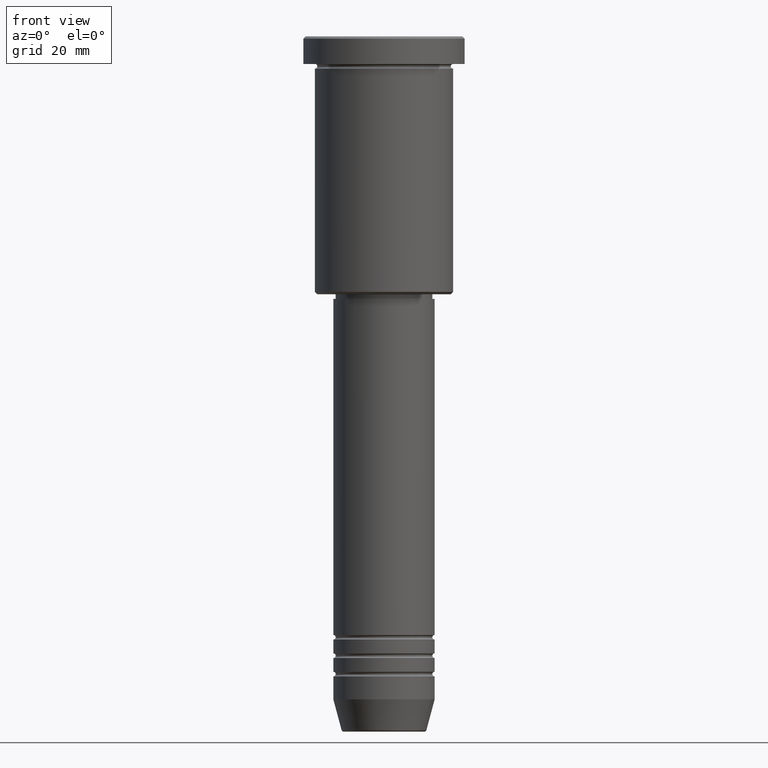
[diagram: clean part render]
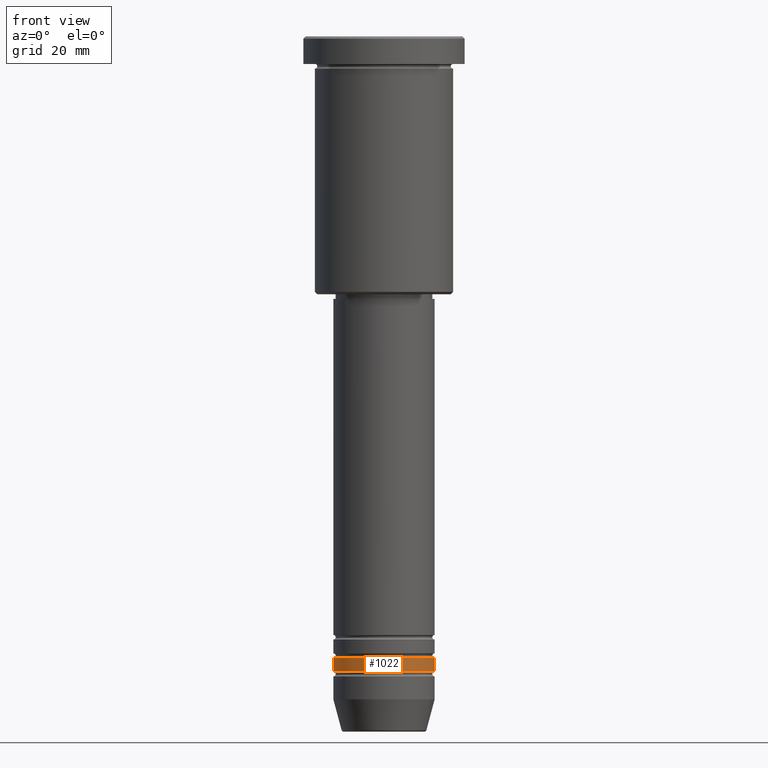
[diagram: same view with one face highlighted and labeled with its STEP entity id]
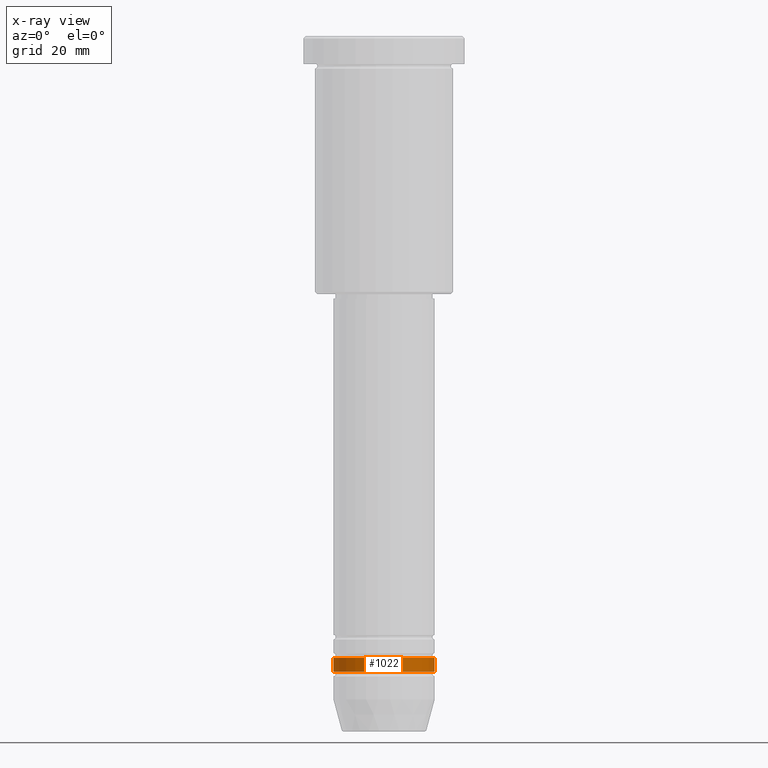
[diagram: x-ray of the same camera — body ghosted, the highlighted face saturated]
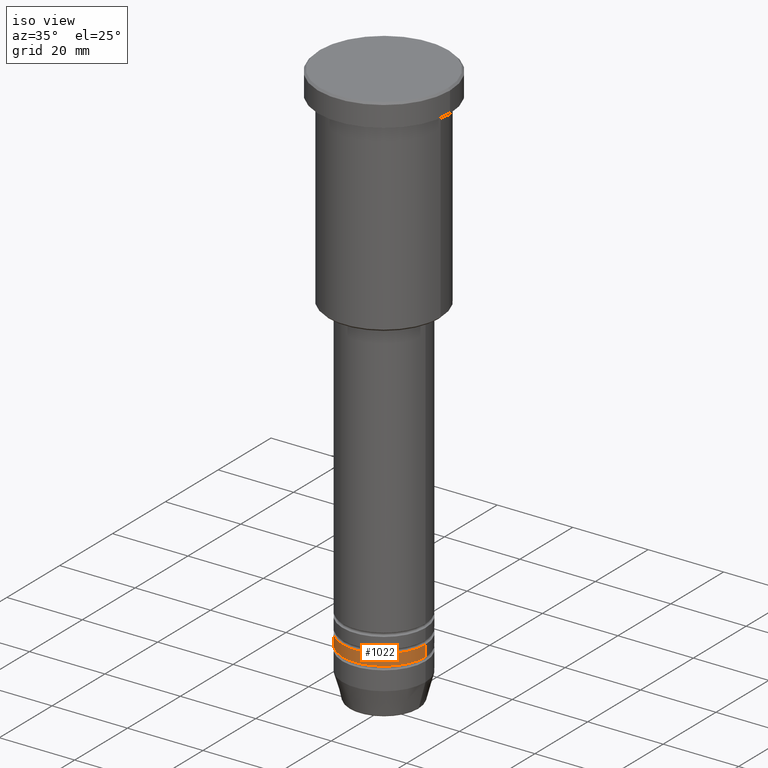
[diagram: same view with one face highlighted and labeled with its STEP entity id]
A machine part, front view. The second image highlights one B-rep face of the part: STEP entity #1022.
The next image is the same camera in x-ray: the body ghosted, the highlighted face saturated — about 0% of this face is hidden behind the body in this view.
A second angle (iso view) of the same face is appended — the face is thin or edge-on in the first view.
In plain terms, the highlighted cylindrical surface (partial cylindrical patch) has radius 11 mm, axis along (-0, -0, 1).
Its self-contained STEP definition (entity closure, byte-faithful):
#13 = CARTESIAN_POINT ( 'NONE',  ( -11.00000000000000000, 1.347111479062088405E-15, -134.9999999999998863 ) ) ;
#43 = DIRECTION ( 'NONE',  ( -0.000000000000000000, -0.000000000000000000, 1.000000000000000000 ) ) ;
#45 = CYLINDRICAL_SURFACE ( 'NONE', #84, 11.00000000000000000 ) ;
#84 = AXIS2_PLACEMENT_3D ( 'NONE', #600, #124, #955 ) ;
#124 = DIRECTION ( 'NONE',  ( -0.000000000000000000, -0.000000000000000000, 1.000000000000000000 ) ) ;
#151 = VERTEX_POINT ( 'NONE', #743 ) ;
#156 = CARTESIAN_POINT ( 'NONE',  ( 0.000000000000000000, 0.000000000000000000, -134.9999999999998863 ) ) ;
#175 = CARTESIAN_POINT ( 'NONE',  ( 0.000000000000000000, 0.000000000000000000, -137.9999999999998863 ) ) ;
#184 = VECTOR ( 'NONE', #721, 1000.000000000000000 ) ;
#233 = FACE_OUTER_BOUND ( 'NONE', #1042, .T. ) ;
#234 = DIRECTION ( 'NONE',  ( -0.000000000000000000, -0.000000000000000000, 1.000000000000000000 ) ) ;
#275 = CARTESIAN_POINT ( 'NONE',  ( -11.00000000000000000, 1.347111479062088405E-15, -137.9999999999998863 ) ) ;
#278 = AXIS2_PLACEMENT_3D ( 'NONE', #156, #234, #1129 ) ;
#362 = AXIS2_PLACEMENT_3D ( 'NONE', #175, #837, #1111 ) ;
#369 = CARTESIAN_POINT ( 'NONE',  ( -11.00000000000000000, 1.347111479062088405E-15, 0.000000000000000000 ) ) ;
#384 = EDGE_CURVE ( 'NONE', #1160, #729, #806, .T. ) ;
#512 = VECTOR ( 'NONE', #43, 1000.000000000000000 ) ;
#516 = CARTESIAN_POINT ( 'NONE',  ( 11.00000000000000000, 0.000000000000000000, 0.000000000000000000 ) ) ;
#567 = ORIENTED_EDGE ( 'NONE', *, *, #620, .T. ) ;
#600 = CARTESIAN_POINT ( 'NONE',  ( 0.000000000000000000, 0.000000000000000000, 0.000000000000000000 ) ) ;
#620 = EDGE_CURVE ( 'NONE', #729, #151, #951, .T. ) ;
#694 = EDGE_CURVE ( 'NONE', #1160, #967, #980, .T. ) ;
#704 = ORIENTED_EDGE ( 'NONE', *, *, #694, .F. ) ;
#717 = CARTESIAN_POINT ( 'NONE',  ( 11.00000000000000000, 0.000000000000000000, -137.9999999999998863 ) ) ;
#721 = DIRECTION ( 'NONE',  ( -0.000000000000000000, -0.000000000000000000, 1.000000000000000000 ) ) ;
#729 = VERTEX_POINT ( 'NONE', #717 ) ;
#743 = CARTESIAN_POINT ( 'NONE',  ( 11.00000000000000000, 0.000000000000000000, -134.9999999999998863 ) ) ;
#806 = CIRCLE ( 'NONE', #362, 11.00000000000000000 ) ;
#825 = EDGE_CURVE ( 'NONE', #967, #151, #1145, .T. ) ;
#837 = DIRECTION ( 'NONE',  ( -0.000000000000000000, -0.000000000000000000, 1.000000000000000000 ) ) ;
#854 = ORIENTED_EDGE ( 'NONE', *, *, #825, .F. ) ;
#942 = ORIENTED_EDGE ( 'NONE', *, *, #384, .T. ) ;
#951 = LINE ( 'NONE', #516, #512 ) ;
#955 = DIRECTION ( 'NONE',  ( 1.000000000000000000, 0.000000000000000000, 0.000000000000000000 ) ) ;
#967 = VERTEX_POINT ( 'NONE', #13 ) ;
#980 = LINE ( 'NONE', #369, #184 ) ;
#1022 = ADVANCED_FACE ( 'NONE', ( #233 ), #45, .T. ) ;
#1042 = EDGE_LOOP ( 'NONE', ( #704, #942, #567, #854 ) ) ;
#1111 = DIRECTION ( 'NONE',  ( 1.000000000000000000, 0.000000000000000000, 0.000000000000000000 ) ) ;
#1129 = DIRECTION ( 'NONE',  ( 1.000000000000000000, 0.000000000000000000, 0.000000000000000000 ) ) ;
#1145 = CIRCLE ( 'NONE', #278, 11.00000000000000000 ) ;
#1160 = VERTEX_POINT ( 'NONE', #275 ) ;